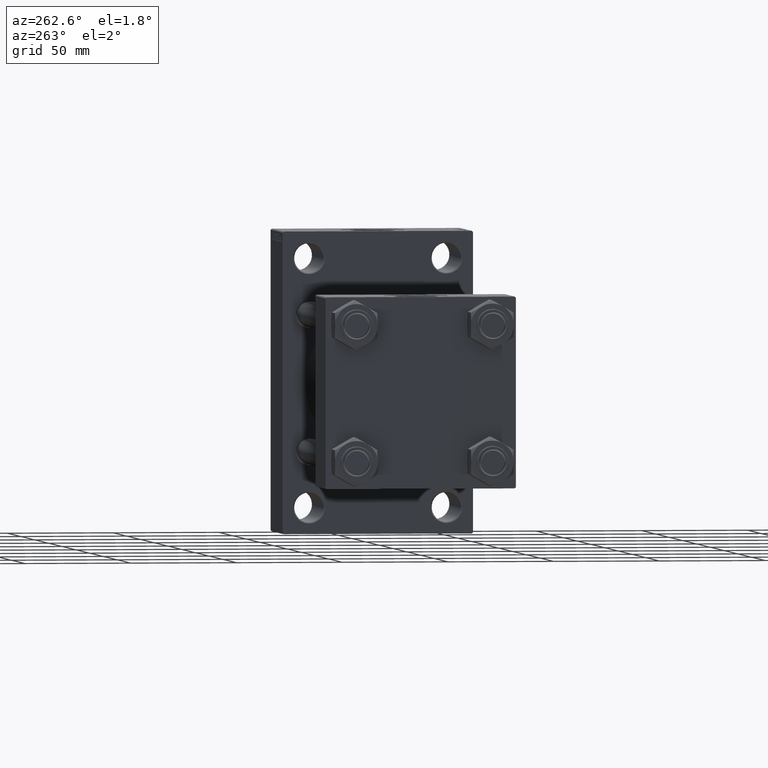
[diagram: clean part render]
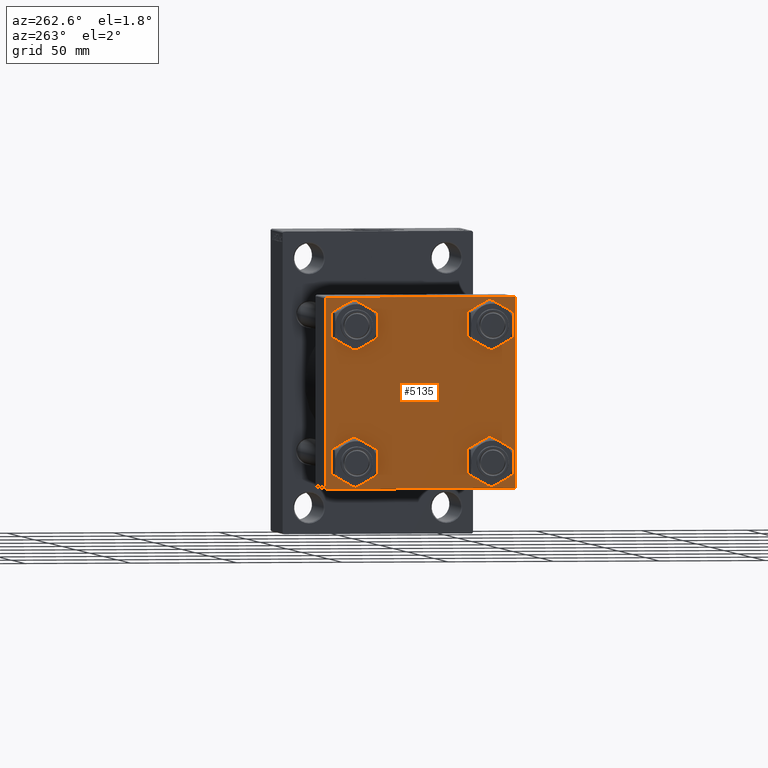
[diagram: same view with one face highlighted and labeled with its STEP entity id]
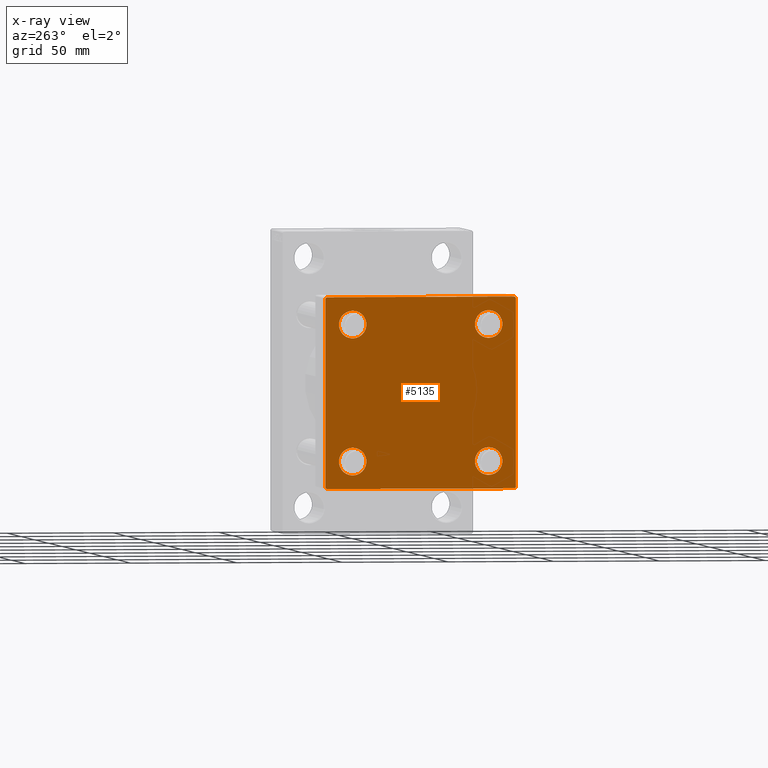
[diagram: x-ray of the same camera — body ghosted, the highlighted face saturated]
A machine part, auxiliary view. The second image highlights one B-rep face of the part: STEP entity #5135.
The next image is the same camera in x-ray: the body ghosted, the highlighted face saturated — about 0% of this face is hidden behind the body in this view.
In plain terms, the highlighted planar face has unit normal (-1, 0, 0).
Its self-contained STEP definition (entity closure, byte-faithful):
#34 = CARTESIAN_POINT ( 'NONE',  ( 0.000000000000000000, 32.14999999999999147, 32.14999999999999858 ) ) ;
#954 = DIRECTION ( 'NONE',  ( -1.000000000000000000, 0.000000000000000000, -0.000000000000000000 ) ) ;
#1112 = ORIENTED_EDGE ( 'NONE', *, *, #9466, .T. ) ;
#1186 = FACE_BOUND ( 'NONE', #2647, .T. ) ;
#1964 = VECTOR ( 'NONE', #32590, 1000.000000000000114 ) ;
#2092 = CARTESIAN_POINT ( 'NONE',  ( 0.000000000000000000, -32.14999999999997726, 25.65000000000002700 ) ) ;
#2146 = CARTESIAN_POINT ( 'NONE',  ( 0.000000000000000000, -32.14999999999997726, -25.65000000000002700 ) ) ;
#2647 = EDGE_LOOP ( 'NONE', ( #23120, #35316 ) ) ;
#3120 = CARTESIAN_POINT ( 'NONE',  ( 0.000000000000000000, 45.00000000000000000, -44.49999999999996447 ) ) ;
#3544 = CIRCLE ( 'NONE', #5840, 6.500000000000019540 ) ;
#4368 = DIRECTION ( 'NONE',  ( 0.000000000000000000, 0.000000000000000000, -1.000000000000000000 ) ) ;
#4523 = CIRCLE ( 'NONE', #39161, 6.500000000000019540 ) ;
#5135 = ADVANCED_FACE ( 'NONE', ( #11785, #1186, #19028, #26504, #18785 ), #33988, .T. ) ;
#5813 = VECTOR ( 'NONE', #30128, 1000.000000000000114 ) ;
#5840 = AXIS2_PLACEMENT_3D ( 'NONE', #32289, #39759, #35443 ) ;
#6589 = CIRCLE ( 'NONE', #18153, 6.499999999999977796 ) ;
#6979 = DIRECTION ( 'NONE',  ( 0.000000000000000000, 0.000000000000000000, 1.000000000000000000 ) ) ;
#7177 = VERTEX_POINT ( 'NONE', #3120 ) ;
#7742 = VERTEX_POINT ( 'NONE', #42497 ) ;
#7781 = DIRECTION ( 'NONE',  ( 0.000000000000000000, 0.000000000000000000, -1.000000000000000000 ) ) ;
#7863 = DIRECTION ( 'NONE',  ( 0.000000000000000000, -1.000000000000000000, -2.312964634635742957E-16 ) ) ;
#7982 = VERTEX_POINT ( 'NONE', #31832 ) ;
#8537 = CARTESIAN_POINT ( 'NONE',  ( 0.000000000000000000, -32.14999999999997726, -32.15000000000000568 ) ) ;
#8577 = LINE ( 'NONE', #44521, #26762 ) ;
#9027 = CARTESIAN_POINT ( 'NONE',  ( 0.000000000000000000, 32.14999999999999147, 32.14999999999999858 ) ) ;
#9466 = EDGE_CURVE ( 'NONE', #24429, #22464, #43426, .T. ) ;
#9993 = EDGE_CURVE ( 'NONE', #13689, #44044, #6589, .T. ) ;
#10071 = ORIENTED_EDGE ( 'NONE', *, *, #46995, .T. ) ;
#10399 = EDGE_CURVE ( 'NONE', #31516, #7982, #3544, .T. ) ;
#10879 = EDGE_CURVE ( 'NONE', #23679, #36685, #23569, .T. ) ;
#11095 = EDGE_CURVE ( 'NONE', #16896, #46144, #14325, .T. ) ;
#11197 = CARTESIAN_POINT ( 'NONE',  ( 0.000000000000000000, 45.00000000000000000, -44.99999999999999289 ) ) ;
#11583 = ORIENTED_EDGE ( 'NONE', *, *, #33857, .T. ) ;
#11785 = FACE_BOUND ( 'NONE', #31709, .T. ) ;
#11924 = ORIENTED_EDGE ( 'NONE', *, *, #47169, .T. ) ;
#11990 = CARTESIAN_POINT ( 'NONE',  ( 0.000000000000000000, 32.14999999999999147, -25.64999999999997726 ) ) ;
#12590 = EDGE_LOOP ( 'NONE', ( #45426, #30767 ) ) ;
#13584 = AXIS2_PLACEMENT_3D ( 'NONE', #9027, #19406, #44963 ) ;
#13596 = ORIENTED_EDGE ( 'NONE', *, *, #40369, .T. ) ;
#13689 = VERTEX_POINT ( 'NONE', #40299 ) ;
#13826 = CARTESIAN_POINT ( 'NONE',  ( 0.000000000000000000, -32.14999999999997726, -32.15000000000000568 ) ) ;
#14325 = CIRCLE ( 'NONE', #15096, 6.499999999999977796 ) ;
#15096 = AXIS2_PLACEMENT_3D ( 'NONE', #13826, #42310, #38935 ) ;
#15263 = CARTESIAN_POINT ( 'NONE',  ( 0.000000000000000000, -32.14999999999997726, -38.64999999999998437 ) ) ;
#15558 = VERTEX_POINT ( 'NONE', #22484 ) ;
#15931 = CARTESIAN_POINT ( 'NONE',  ( 0.000000000000000000, 45.00000000000000000, 45.00000000000000711 ) ) ;
#16695 = VECTOR ( 'NONE', #36018, 999.9999999999998863 ) ;
#16896 = VERTEX_POINT ( 'NONE', #2146 ) ;
#17369 = EDGE_CURVE ( 'NONE', #46144, #16896, #28201, .T. ) ;
#17371 = DIRECTION ( 'NONE',  ( 1.000000000000000000, -0.000000000000000000, 0.000000000000000000 ) ) ;
#18153 = AXIS2_PLACEMENT_3D ( 'NONE', #43770, #47153, #36309 ) ;
#18785 = FACE_OUTER_BOUND ( 'NONE', #21563, .T. ) ;
#18876 = CARTESIAN_POINT ( 'NONE',  ( 0.000000000000000000, -45.00000000000000000, 44.99999999999998579 ) ) ;
#18879 = ORIENTED_EDGE ( 'NONE', *, *, #42086, .T. ) ;
#19028 = FACE_BOUND ( 'NONE', #12590, .T. ) ;
#19406 = DIRECTION ( 'NONE',  ( 1.000000000000000000, -0.000000000000000000, 0.000000000000000000 ) ) ;
#19807 = CARTESIAN_POINT ( 'NONE',  ( 0.000000000000000000, -32.14999999999997726, 32.15000000000000568 ) ) ;
#21504 = EDGE_CURVE ( 'NONE', #7742, #22464, #8577, .T. ) ;
#21532 = CARTESIAN_POINT ( 'NONE',  ( 0.000000000000000000, 44.74999999999936762, 44.75000000000061107 ) ) ;
#21563 = EDGE_LOOP ( 'NONE', ( #13596, #23514, #10071, #18879, #32480, #1112, #26900, #11924 ) ) ;
#21681 = CIRCLE ( 'NONE', #34023, 6.499999999999977796 ) ;
#22203 = DIRECTION ( 'NONE',  ( 1.000000000000000000, -0.000000000000000000, 0.000000000000000000 ) ) ;
#22464 = VERTEX_POINT ( 'NONE', #42176 ) ;
#22484 = CARTESIAN_POINT ( 'NONE',  ( 0.000000000000000000, -45.00000000000000000, -44.49999999999997158 ) ) ;
#22531 = DIRECTION ( 'NONE',  ( 1.000000000000000000, -0.000000000000000000, 0.000000000000000000 ) ) ;
#22652 = CARTESIAN_POINT ( 'NONE',  ( 0.000000000000000000, 44.74999999999999289, -44.74999999999999289 ) ) ;
#23041 = EDGE_CURVE ( 'NONE', #7982, #31516, #4523, .T. ) ;
#23120 = ORIENTED_EDGE ( 'NONE', *, *, #11095, .T. ) ;
#23514 = ORIENTED_EDGE ( 'NONE', *, *, #43476, .T. ) ;
#23516 = LINE ( 'NONE', #38240, #36567 ) ;
#23569 = CIRCLE ( 'NONE', #13584, 6.500000000000019540 ) ;
#23614 = CIRCLE ( 'NONE', #32838, 6.500000000000019540 ) ;
#23679 = VERTEX_POINT ( 'NONE', #35844 ) ;
#24429 = VERTEX_POINT ( 'NONE', #46517 ) ;
#25088 = CARTESIAN_POINT ( 'NONE',  ( 0.000000000000000000, 32.14999999999999147, -32.14999999999999858 ) ) ;
#25648 = ORIENTED_EDGE ( 'NONE', *, *, #10879, .T. ) ;
#25867 = VERTEX_POINT ( 'NONE', #34384 ) ;
#26469 = AXIS2_PLACEMENT_3D ( 'NONE', #41218, #954, #33506 ) ;
#26504 = FACE_BOUND ( 'NONE', #44208, .T. ) ;
#26762 = VECTOR ( 'NONE', #7863, 1000.000000000000000 ) ;
#26900 = ORIENTED_EDGE ( 'NONE', *, *, #21504, .F. ) ;
#28132 = EDGE_CURVE ( 'NONE', #24429, #15558, #29731, .T. ) ;
#28201 = CIRCLE ( 'NONE', #38226, 6.499999999999977796 ) ;
#28495 = VECTOR ( 'NONE', #7781, 1000.000000000000000 ) ;
#28935 = DIRECTION ( 'NONE',  ( 0.000000000000000000, 0.000000000000000000, 1.000000000000000000 ) ) ;
#29048 = DIRECTION ( 'NONE',  ( 0.000000000000000000, -1.000000000000000000, -7.709882115452476934E-17 ) ) ;
#29561 = CARTESIAN_POINT ( 'NONE',  ( 0.000000000000000000, -44.49999999999994316, -45.00000000000000000 ) ) ;
#29731 = LINE ( 'NONE', #18876, #28495 ) ;
#30128 = DIRECTION ( 'NONE',  ( -0.000000000000000000, -0.7071067811865474617, -0.7071067811865474617 ) ) ;
#30767 = ORIENTED_EDGE ( 'NONE', *, *, #23041, .T. ) ;
#31516 = VERTEX_POINT ( 'NONE', #11990 ) ;
#31709 = EDGE_LOOP ( 'NONE', ( #31952, #11583 ) ) ;
#31832 = CARTESIAN_POINT ( 'NONE',  ( 0.000000000000000000, 32.14999999999999147, -38.65000000000001990 ) ) ;
#31952 = ORIENTED_EDGE ( 'NONE', *, *, #9993, .T. ) ;
#32289 = CARTESIAN_POINT ( 'NONE',  ( 0.000000000000000000, 32.14999999999999147, -32.14999999999999858 ) ) ;
#32480 = ORIENTED_EDGE ( 'NONE', *, *, #28132, .F. ) ;
#32590 = DIRECTION ( 'NONE',  ( -0.000000000000000000, 0.7071067811865474617, 0.7071067811865474617 ) ) ;
#32838 = AXIS2_PLACEMENT_3D ( 'NONE', #34, #22203, #44373 ) ;
#33506 = DIRECTION ( 'NONE',  ( -0.000000000000000000, 0.000000000000000000, 1.000000000000000000 ) ) ;
#33857 = EDGE_CURVE ( 'NONE', #44044, #13689, #21681, .T. ) ;
#33988 = PLANE ( 'NONE',  #26469 ) ;
#34023 = AXIS2_PLACEMENT_3D ( 'NONE', #19807, #34534, #6979 ) ;
#34176 = VERTEX_POINT ( 'NONE', #46971 ) ;
#34384 = CARTESIAN_POINT ( 'NONE',  ( 0.000000000000000000, 45.00000000000000000, 44.49999999999999289 ) ) ;
#34534 = DIRECTION ( 'NONE',  ( 1.000000000000000000, -0.000000000000000000, 0.000000000000000000 ) ) ;
#35009 = CARTESIAN_POINT ( 'NONE',  ( 0.000000000000000000, 32.14999999999999147, 25.64999999999997726 ) ) ;
#35204 = VECTOR ( 'NONE', #29048, 1000.000000000000000 ) ;
#35316 = ORIENTED_EDGE ( 'NONE', *, *, #17369, .T. ) ;
#35443 = DIRECTION ( 'NONE',  ( 0.000000000000000000, 0.000000000000000000, 1.000000000000000000 ) ) ;
#35844 = CARTESIAN_POINT ( 'NONE',  ( 0.000000000000000000, 32.14999999999999147, 38.65000000000001990 ) ) ;
#36018 = DIRECTION ( 'NONE',  ( 0.000000000000000000, 0.7071067811865574537, -0.7071067811865376918 ) ) ;
#36309 = DIRECTION ( 'NONE',  ( 0.000000000000000000, 0.000000000000000000, 1.000000000000000000 ) ) ;
#36540 = LINE ( 'NONE', #11197, #35204 ) ;
#36567 = VECTOR ( 'NONE', #46646, 1000.000000000000000 ) ;
#36685 = VERTEX_POINT ( 'NONE', #35009 ) ;
#37292 = VECTOR ( 'NONE', #4368, 1000.000000000000000 ) ;
#37409 = LINE ( 'NONE', #15931, #37292 ) ;
#38226 = AXIS2_PLACEMENT_3D ( 'NONE', #8537, #22531, #41823 ) ;
#38240 = CARTESIAN_POINT ( 'NONE',  ( 0.000000000000000000, -44.74999999999873523, -44.75000000000122924 ) ) ;
#38935 = DIRECTION ( 'NONE',  ( 0.000000000000000000, 0.000000000000000000, 1.000000000000000000 ) ) ;
#39161 = AXIS2_PLACEMENT_3D ( 'NONE', #25088, #17371, #28935 ) ;
#39759 = DIRECTION ( 'NONE',  ( 1.000000000000000000, -0.000000000000000000, 0.000000000000000000 ) ) ;
#40299 = CARTESIAN_POINT ( 'NONE',  ( 0.000000000000000000, -32.14999999999997726, 38.64999999999999147 ) ) ;
#40339 = LINE ( 'NONE', #21532, #16695 ) ;
#40369 = EDGE_CURVE ( 'NONE', #25867, #7177, #37409, .T. ) ;
#40987 = LINE ( 'NONE', #22652, #5813 ) ;
#41218 = CARTESIAN_POINT ( 'NONE',  ( 0.000000000000000000, 0.000000000000000000, 0.000000000000000000 ) ) ;
#41823 = DIRECTION ( 'NONE',  ( 0.000000000000000000, 0.000000000000000000, 1.000000000000000000 ) ) ;
#41842 = VERTEX_POINT ( 'NONE', #29561 ) ;
#41987 = ORIENTED_EDGE ( 'NONE', *, *, #45668, .T. ) ;
#42086 = EDGE_CURVE ( 'NONE', #41842, #15558, #23516, .T. ) ;
#42176 = CARTESIAN_POINT ( 'NONE',  ( 0.000000000000000000, -44.49999999999997158, 44.99999999999998579 ) ) ;
#42310 = DIRECTION ( 'NONE',  ( 1.000000000000000000, -0.000000000000000000, 0.000000000000000000 ) ) ;
#42497 = CARTESIAN_POINT ( 'NONE',  ( 0.000000000000000000, 44.49999999999997158, 45.00000000000000711 ) ) ;
#43426 = LINE ( 'NONE', #47289, #1964 ) ;
#43476 = EDGE_CURVE ( 'NONE', #7177, #34176, #40987, .T. ) ;
#43770 = CARTESIAN_POINT ( 'NONE',  ( 0.000000000000000000, -32.14999999999997726, 32.15000000000000568 ) ) ;
#44044 = VERTEX_POINT ( 'NONE', #2092 ) ;
#44208 = EDGE_LOOP ( 'NONE', ( #25648, #41987 ) ) ;
#44373 = DIRECTION ( 'NONE',  ( 0.000000000000000000, 0.000000000000000000, 1.000000000000000000 ) ) ;
#44521 = CARTESIAN_POINT ( 'NONE',  ( 0.000000000000000000, 45.00000000000000000, 45.00000000000000711 ) ) ;
#44963 = DIRECTION ( 'NONE',  ( 0.000000000000000000, 0.000000000000000000, 1.000000000000000000 ) ) ;
#45426 = ORIENTED_EDGE ( 'NONE', *, *, #10399, .T. ) ;
#45668 = EDGE_CURVE ( 'NONE', #36685, #23679, #23614, .T. ) ;
#46144 = VERTEX_POINT ( 'NONE', #15263 ) ;
#46517 = CARTESIAN_POINT ( 'NONE',  ( 0.000000000000000000, -45.00000000000000000, 44.49999999999998579 ) ) ;
#46646 = DIRECTION ( 'NONE',  ( 0.000000000000000000, -0.7071067811865672237, 0.7071067811865279218 ) ) ;
#46971 = CARTESIAN_POINT ( 'NONE',  ( 0.000000000000000000, 44.50000000000000000, -44.99999999999999289 ) ) ;
#46995 = EDGE_CURVE ( 'NONE', #34176, #41842, #36540, .T. ) ;
#47153 = DIRECTION ( 'NONE',  ( 1.000000000000000000, -0.000000000000000000, 0.000000000000000000 ) ) ;
#47169 = EDGE_CURVE ( 'NONE', #7742, #25867, #40339, .T. ) ;
#47289 = CARTESIAN_POINT ( 'NONE',  ( -0.000000000000000000, -44.74999999999999289, 44.74999999999999289 ) ) ;